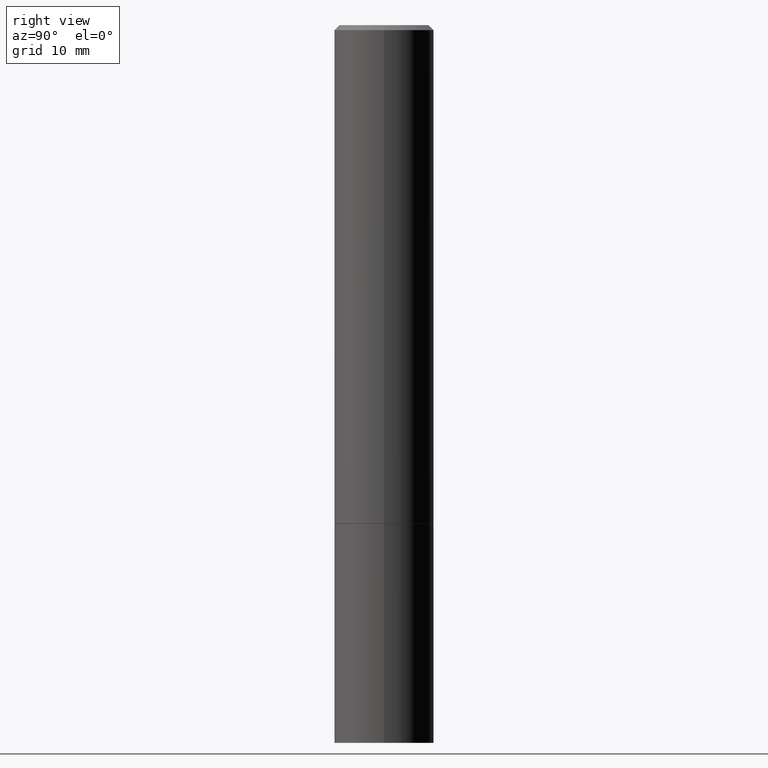
[diagram: clean part render]
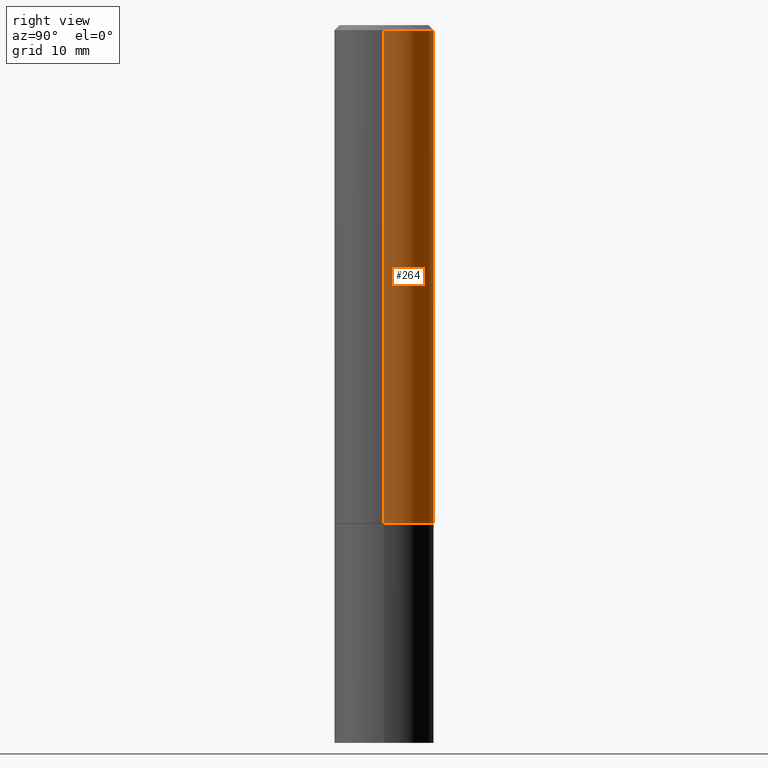
[diagram: same view with one face highlighted and labeled with its STEP entity id]
A machine part, right view. The second image highlights one B-rep face of the part: STEP entity #264.
In plain terms, the highlighted cylindrical surface (partial cylindrical patch) has radius 5 mm, axis along (-0, 0, 1).
Its self-contained STEP definition (entity closure, byte-faithful):
#20 = CIRCLE ( 'NONE', #77, 0.1968500000000000250 ) ;
#22 = CARTESIAN_POINT ( 'NONE',  ( -0.1968500000000000250, -2.070956205131617028E-15, -1.967500000000000027 ) ) ;
#26 = CARTESIAN_POINT ( 'NONE',  ( 0.1968499999999997474, -1.420318657638187347E-15, -0.02000000000000005246 ) ) ;
#28 = VERTEX_POINT ( 'NONE', #303 ) ;
#48 = CARTESIAN_POINT ( 'NONE',  ( 4.811459876169256232E-29, -6.869489534173888700E-15, -1.967500000000000027 ) ) ;
#52 = VECTOR ( 'NONE', #85, 39.37007874015748143 ) ;
#59 = DIRECTION ( 'NONE',  ( -2.445468806185136597E-29, 3.491481338843145583E-15, 1.000000000000000000 ) ) ;
#73 = DIRECTION ( 'NONE',  ( -2.445468806185136877E-29, 3.491481338843145188E-15, 1.000000000000000000 ) ) ;
#77 = AXIS2_PLACEMENT_3D ( 'NONE', #48, #162, #166 ) ;
#85 = DIRECTION ( 'NONE',  ( -2.445468806185136877E-29, 3.491481338843145188E-15, 1.000000000000000000 ) ) ;
#111 = CARTESIAN_POINT ( 'NONE',  ( 0.000000000000000000, 0.000000000000000000, 0.000000000000000000 ) ) ;
#114 = DIRECTION ( 'NONE',  ( 1.000000000000000000, -6.982962677686266711E-15, 0.000000000000000000 ) ) ;
#139 = DIRECTION ( 'NONE',  ( -2.445468806185136597E-29, 3.491481338843145583E-15, 1.000000000000000000 ) ) ;
#141 = AXIS2_PLACEMENT_3D ( 'NONE', #293, #59, #114 ) ;
#149 = EDGE_CURVE ( 'NONE', #175, #28, #215, .T. ) ;
#152 = AXIS2_PLACEMENT_3D ( 'NONE', #111, #139, #255 ) ;
#162 = DIRECTION ( 'NONE',  ( -2.445468806185136597E-29, 3.491481338843145583E-15, 1.000000000000000000 ) ) ;
#166 = DIRECTION ( 'NONE',  ( 1.000000000000000000, -6.982962677686267499E-15, 0.000000000000000000 ) ) ;
#175 = VERTEX_POINT ( 'NONE', #22 ) ;
#196 = CYLINDRICAL_SURFACE ( 'NONE', #152, 0.1968499999999998862 ) ;
#202 = EDGE_LOOP ( 'NONE', ( #321, #350, #204, #341 ) ) ;
#204 = ORIENTED_EDGE ( 'NONE', *, *, #353, .F. ) ;
#212 = VERTEX_POINT ( 'NONE', #334 ) ;
#215 = LINE ( 'NONE', #305, #296 ) ;
#236 = VERTEX_POINT ( 'NONE', #26 ) ;
#255 = DIRECTION ( 'NONE',  ( 1.000000000000000000, -6.982962677686266711E-15, 4.876176775795935793E-29 ) ) ;
#257 = EDGE_CURVE ( 'NONE', #212, #175, #20, .T. ) ;
#264 = ADVANCED_FACE ( 'NONE', ( #283 ), #196, .T. ) ;
#281 = LINE ( 'NONE', #339, #52 ) ;
#283 = FACE_OUTER_BOUND ( 'NONE', #202, .T. ) ;
#293 = CARTESIAN_POINT ( 'NONE',  ( 4.890937612370285420E-31, -6.982962677686308865E-17, -0.02000000000000005246 ) ) ;
#296 = VECTOR ( 'NONE', #73, 39.37007874015748143 ) ;
#303 = CARTESIAN_POINT ( 'NONE',  ( -0.1968499999999997474, 1.304766576325676732E-15, -0.02000000000000005246 ) ) ;
#305 = CARTESIAN_POINT ( 'NONE',  ( -0.1968499999999998862, 1.398703375343756407E-15, -9.682923725166776671E-30 ) ) ;
#313 = CIRCLE ( 'NONE', #141, 0.1968499999999997474 ) ;
#321 = ORIENTED_EDGE ( 'NONE', *, *, #257, .T. ) ;
#332 = EDGE_CURVE ( 'NONE', #212, #236, #281, .T. ) ;
#334 = CARTESIAN_POINT ( 'NONE',  ( 0.1968500000000000250, -8.244085737276430308E-15, -1.967500000000000027 ) ) ;
#339 = CARTESIAN_POINT ( 'NONE',  ( 0.1968499999999998862, -1.374596203102540819E-15, 9.598753983154293852E-30 ) ) ;
#341 = ORIENTED_EDGE ( 'NONE', *, *, #332, .F. ) ;
#350 = ORIENTED_EDGE ( 'NONE', *, *, #149, .T. ) ;
#353 = EDGE_CURVE ( 'NONE', #236, #28, #313, .T. ) ;